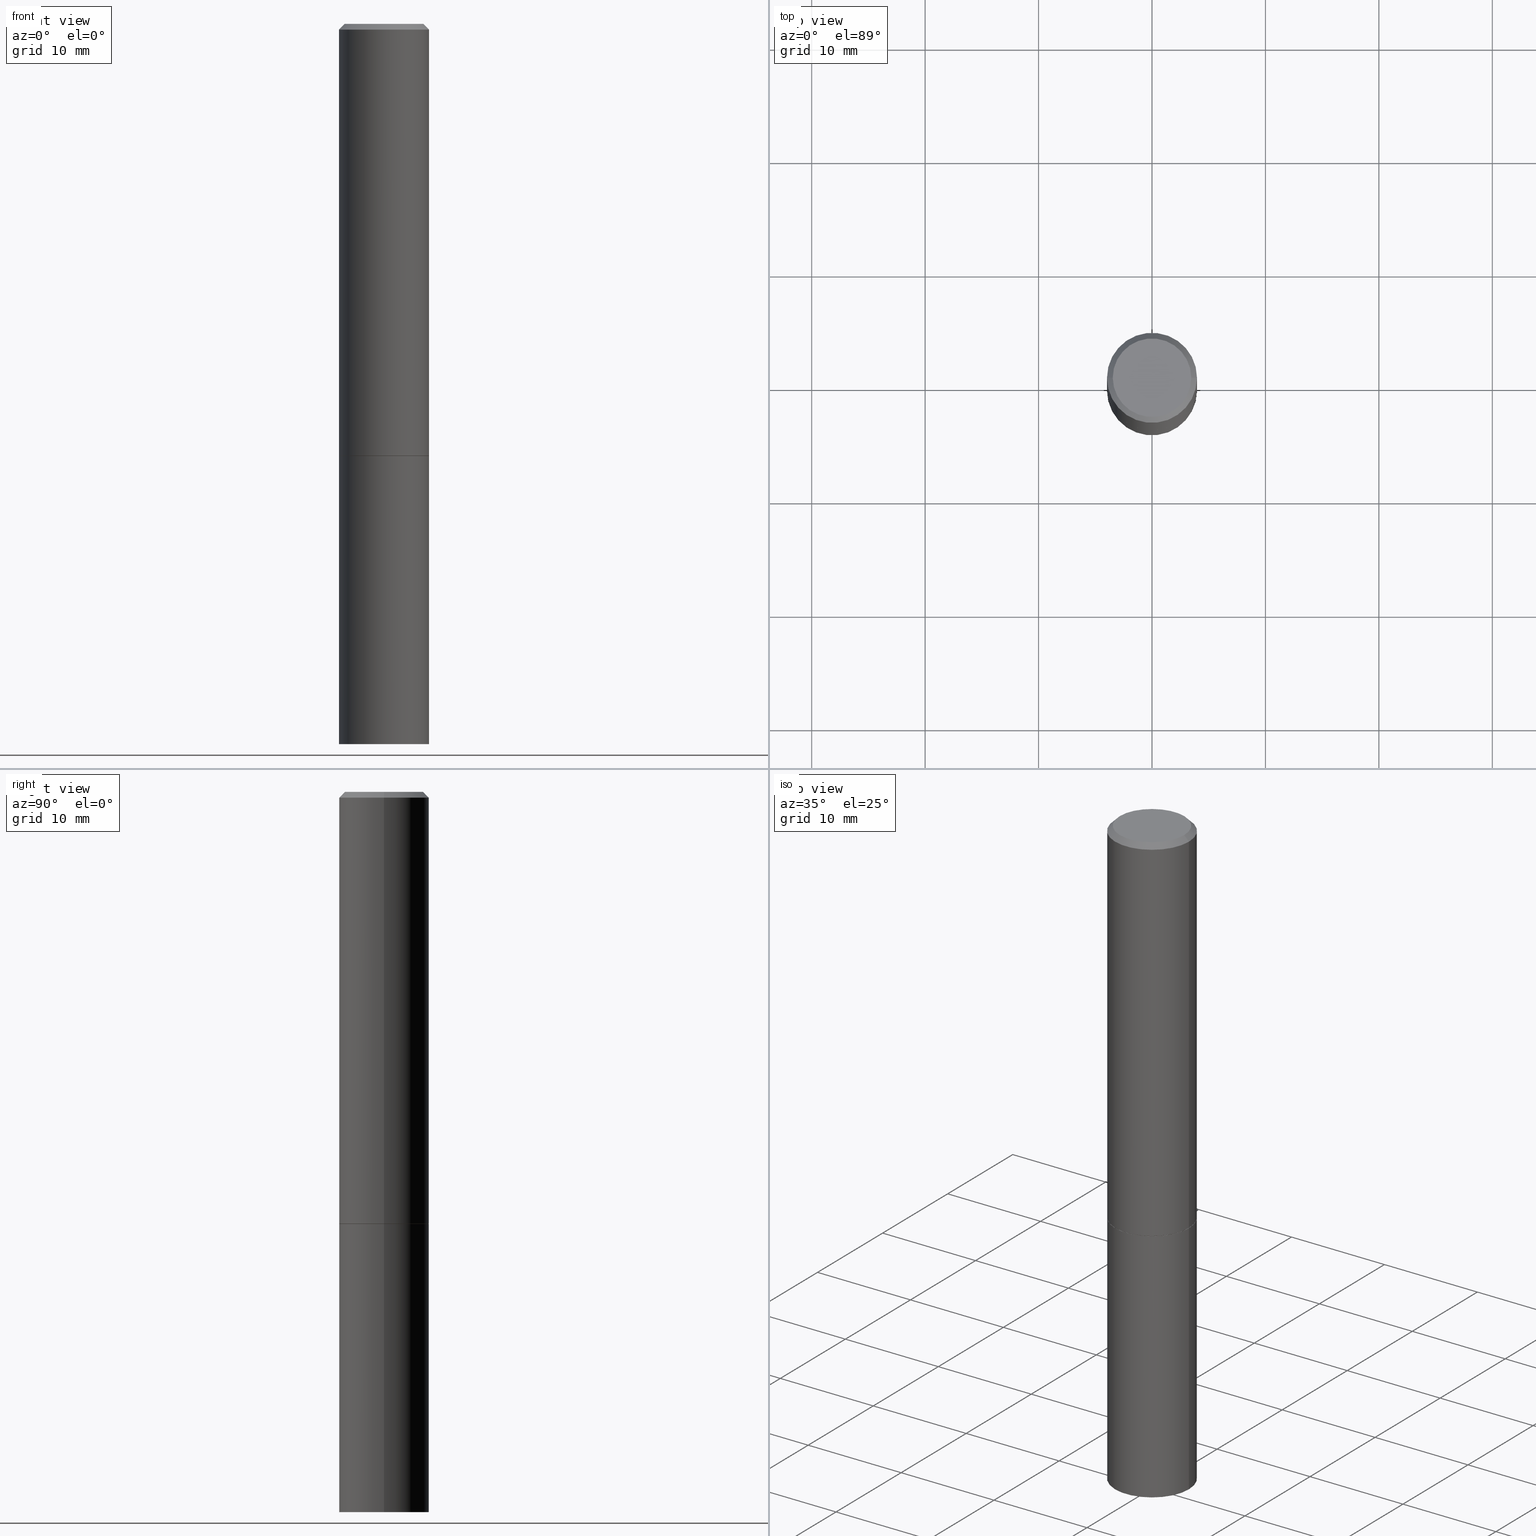
[diagram: canonical four-view strip — front | top / right | iso, engineering-drawing reading convention]
A machine part, canonical four-view strip (front | top / right | iso — engineering-drawing reading convention). The complete STEP part file that produces these views, byte-faithful:
ISO-10303-21;
HEADER;
FILE_DESCRIPTION (( 'STEP AP203' ),
    '1' );
FILE_NAME ('72958.STEP',
    '2024-02-29T05:02:52',
    ( '' ),
    ( '' ),
    'SwSTEP 2.0',
    'SolidWorks 2023',
    '' );
FILE_SCHEMA (( 'CONFIG_CONTROL_DESIGN' ));
ENDSEC;

DATA;
#1 = FACE_OUTER_BOUND ( 'NONE', #50, .T. ) ;
#2 = DIRECTION ( 'NONE',  ( 0.000000000000000000, 0.000000000000000000, 1.000000000000000000 ) ) ;
#3 = CARTESIAN_POINT ( 'NONE',  ( 3.668203209277704895E-29, -5.237222008264718177E-15, -1.500000000000000222 ) ) ;
#4 = DIRECTION ( 'NONE',  ( 1.000000000000000000, -6.982962677686266711E-15, 0.000000000000000000 ) ) ;
#5 = EDGE_CURVE ( 'NONE', #170, #177, #249, .T. ) ;
#6 = DIRECTION ( 'NONE',  ( -2.445468806185136597E-29, 3.491481338843145583E-15, 1.000000000000000000 ) ) ;
#7 = CARTESIAN_POINT ( 'NONE',  ( 0.1562499999999999445, -1.091087918388478779E-15, 7.619026212181146173E-30 ) ) ;
#8 = ORIENTED_EDGE ( 'NONE', *, *, #5, .T. ) ;
#9 = DIRECTION ( 'NONE',  ( -2.445468806185136597E-29, 3.491481338843145583E-15, 1.000000000000000000 ) ) ;
#10 = DIRECTION ( 'NONE',  ( -2.445468806185136877E-29, 3.491481338843145188E-15, 1.000000000000000000 ) ) ;
#11 = ORGANIZATION ( 'UNSPECIFIED', 'UNSPECIFIED', '' ) ;
#12 = EDGE_CURVE ( 'NONE', #90, #177, #349, .T. ) ;
#13 = ORIENTED_EDGE ( 'NONE', *, *, #309, .F. ) ;
#14 = APPROVAL_PERSON_ORGANIZATION ( #84, #266, #257 ) ;
#15 = CC_DESIGN_APPROVAL ( #266, ( #292 ) ) ;
#16 = EDGE_LOOP ( 'NONE', ( #193, #340 ) ) ;
#17 = CALENDAR_DATE ( 2024, 29, 2 ) ;
#18 = ORIENTED_EDGE ( 'NONE', *, *, #263, .T. ) ;
#19 = ADVANCED_FACE ( 'NONE', ( #1 ), #86, .T. ) ;
#20 = ORIENTED_EDGE ( 'NONE', *, *, #300, .F. ) ;
#21 = APPROVAL_ROLE ( '' ) ;
#22 = PERSON ( 'UNSPECIFIED', 'UNSPECIFIED', 'UNSPECIFIED', ('UNSPECIFIED'), ('UNSPECIFIED'), ('UNSPECIFIED') ) ;
#23 = AXIS2_PLACEMENT_3D ( 'NONE', #134, #189, #55 ) ;
#24 = CARTESIAN_POINT ( 'NONE',  ( 3.665757740471519853E-29, -5.233730526925875958E-15, -1.499000000000000110 ) ) ;
#25 = PERSON_AND_ORGANIZATION_ROLE ( 'creator' ) ;
#26 = DIRECTION ( 'NONE',  ( 1.000000000000000000, -6.982962677686266711E-15, 4.876388394912423252E-29 ) ) ;
#27 = DIRECTION ( 'NONE',  ( -0.7071067811866199593, 7.493145998870616062E-15, 0.7071067811864750752 ) ) ;
#28 = DIRECTION ( 'NONE',  ( -1.000000000000000000, 6.982962677686265922E-15, -4.876176775795935793E-29 ) ) ;
#29 = CC_DESIGN_PERSON_AND_ORGANIZATION_ASSIGNMENT ( #363, #273, ( #74 ) ) ;
#30 = ORIENTED_EDGE ( 'NONE', *, *, #176, .T. ) ;
#31 = DIRECTION ( 'NONE',  ( -2.445468806185136877E-29, 3.491481338843145188E-15, 1.000000000000000000 ) ) ;
#32 = EDGE_LOOP ( 'NONE', ( #156, #211 ) ) ;
#33 = AXIS2_PLACEMENT_3D ( 'NONE', #312, #9, #38 ) ;
#34 = PERSON_AND_ORGANIZATION_ROLE ( 'creator' ) ;
#35 = FACE_OUTER_BOUND ( 'NONE', #182, .T. ) ;
#36 = FACE_OUTER_BOUND ( 'NONE', #356, .T. ) ;
#37 = ORIENTED_EDGE ( 'NONE', *, *, #129, .T. ) ;
#38 = DIRECTION ( 'NONE',  ( 1.000000000000000000, -6.982962677686268288E-15, 0.000000000000000000 ) ) ;
#39 = APPROVAL_PERSON_ORGANIZATION ( #131, #41, #21 ) ;
#40 = DIRECTION ( 'NONE',  ( -2.445468806185136597E-29, 3.491481338843145583E-15, 1.000000000000000000 ) ) ;
#41 = APPROVAL ( #269, 'UNSPECIFIED' ) ;
#42 = MANIFOLD_SOLID_BREP ( 'Body-Move/Copy2[1]', #322 ) ;
#43 = CARTESIAN_POINT ( 'NONE',  ( 6.113672015462842613E-29, -8.728703347107864943E-15, -2.500000000000000000 ) ) ;
#44 = APPROVAL_DATE_TIME ( #352, #71 ) ;
#45 = CIRCLE ( 'NONE', #262, 0.1562499999999998612 ) ;
#46 = ADVANCED_FACE ( 'NONE', ( #96 ), #245, .T. ) ;
#47 = ORIENTED_EDGE ( 'NONE', *, *, #66, .T. ) ;
#48 = VECTOR ( 'NONE', #317, 39.37007874015748143 ) ;
#49 = ORIENTED_EDGE ( 'NONE', *, *, #339, .T. ) ;
#50 = EDGE_LOOP ( 'NONE', ( #30, #113, #268, #216 ) ) ;
#51 = DATE_AND_TIME ( #153, #213 ) ;
#52 = ORIENTED_EDGE ( 'NONE', *, *, #92, .F. ) ;
#53 = CLOSED_SHELL ( 'NONE', ( #305, #290, #143, #343, #355, #46, #191, #56 ) ) ;
#54 = CIRCLE ( 'NONE', #95, 0.1552499999999999991 ) ;
#55 = DIRECTION ( 'NONE',  ( 1.000000000000000000, -6.982962677686266711E-15, 4.876176775795935232E-29 ) ) ;
#56 = ADVANCED_FACE ( 'NONE', ( #234 ), #321, .F. ) ;
#57 =( LENGTH_UNIT ( ) NAMED_UNIT ( * ) SI_UNIT ( $, .METRE. ) );
#58 = CARTESIAN_POINT ( 'NONE',  ( 1.091087918388515658E-15, 0.1562499999999947820, -1.500000000000000666 ) ) ;
#59 = LINE ( 'NONE', #136, #333 ) ;
#60 =( NAMED_UNIT ( * ) PLANE_ANGLE_UNIT ( ) SI_UNIT ( $, .RADIAN. ) );
#61 = CARTESIAN_POINT ( 'NONE',  ( 3.668203209277704335E-29, -5.237222008264717388E-15, -1.499999999999999778 ) ) ;
#62 = DIRECTION ( 'NONE',  ( -2.445468806185136877E-29, 3.491481338843145188E-15, 1.000000000000000000 ) ) ;
#63 = DIRECTION ( 'NONE',  ( 1.000000000000000000, 0.000000000000000000, 0.000000000000000000 ) ) ;
#64 = FACE_OUTER_BOUND ( 'NONE', #223, .T. ) ;
#65 = AXIS2_PLACEMENT_3D ( 'NONE', #219, #327, #77 ) ;
#66 = EDGE_CURVE ( 'NONE', #212, #152, #244, .T. ) ;
#67 = DIRECTION ( 'NONE',  ( -2.445468806185136597E-29, 3.491481338843145583E-15, 1.000000000000000000 ) ) ;
#68 = CARTESIAN_POINT ( 'NONE',  ( 6.113672015462842613E-29, -8.728703347107864943E-15, -2.500000000000000000 ) ) ;
#69 = DIRECTION ( 'NONE',  ( -2.445468806185136597E-29, 3.491481338843145583E-15, 1.000000000000000000 ) ) ;
#70 = UNCERTAINTY_MEASURE_WITH_UNIT (LENGTH_MEASURE( 1.000000000000000082E-05 ), #311, 'distance_accuracy_value', 'NONE');
#71 = APPROVAL ( #276, 'UNSPECIFIED' ) ;
#72 = CIRCLE ( 'NONE', #354, 0.1562500000000000000 ) ;
#73 = CARTESIAN_POINT ( 'NONE',  ( 0.000000000000000000, 0.000000000000000000, 0.000000000000000000 ) ) ;
#74 = PRODUCT ( '72958', '72958', '', ( #261 ) ) ;
#75 = CIRCLE ( 'NONE', #279, 0.1562500000000000000 ) ;
#76 = AXIS2_PLACEMENT_3D ( 'NONE', #294, #120, #165 ) ;
#77 = DIRECTION ( 'NONE',  ( 1.000000000000000000, -6.982962677686266711E-15, 0.000000000000000000 ) ) ;
#78 = CALENDAR_DATE ( 2024, 29, 2 ) ;
#79 = ORIENTED_EDGE ( 'NONE', *, *, #159, .T. ) ;
#80 = CC_DESIGN_APPROVAL ( #41, ( #187 ) ) ;
#81 = DIRECTION ( 'NONE',  ( -2.445468806185136597E-29, 3.491481338843145583E-15, 1.000000000000000000 ) ) ;
#82 = CARTESIAN_POINT ( 'NONE',  ( -0.1562499999999998612, 1.021258291611615284E-15, -0.02000000000000003511 ) ) ;
#83 = CARTESIAN_POINT ( 'NONE',  ( -0.1562499999999998612, 1.021258291611615284E-15, -0.02000000000000003511 ) ) ;
#84 = PERSON_AND_ORGANIZATION ( #22, #11 ) ;
#85 = EDGE_CURVE ( 'NONE', #304, #90, #59, .T. ) ;
#86 = CYLINDRICAL_SURFACE ( 'NONE', #291, 0.1562500000000000000 ) ;
#87 = CARTESIAN_POINT ( 'NONE',  ( 3.668203209277704895E-29, -5.237222008264718177E-15, -1.500000000000000222 ) ) ;
#88 = CONICAL_SURFACE ( 'NONE', #362, 0.1562499999999998612, 0.7853981633974471688 ) ;
#89 = CARTESIAN_POINT ( 'NONE',  ( 0.1562500000000000000, -1.091087918388479174E-15, 7.619026212181150377E-30 ) ) ;
#90 = VERTEX_POINT ( 'NONE', #130 ) ;
#91 = CARTESIAN_POINT ( 'NONE',  ( 0.1362499999999998712, -1.038262645562517138E-15, 4.268512490107368508E-18 ) ) ;
#92 = EDGE_CURVE ( 'NONE', #152, #364, #220, .T. ) ;
#93 = CARTESIAN_POINT ( 'NONE',  ( 4.890937612370281041E-31, -6.982962677686302702E-17, -0.02000000000000003511 ) ) ;
#94 = AXIS2_PLACEMENT_3D ( 'NONE', #99, #67, #207 ) ;
#95 = AXIS2_PLACEMENT_3D ( 'NONE', #61, #318, #144 ) ;
#96 = FACE_OUTER_BOUND ( 'NONE', #240, .T. ) ;
#97 = PERSON_AND_ORGANIZATION ( #22, #11 ) ;
#98 = APPROVAL_PERSON_ORGANIZATION ( #331, #71, #128 ) ;
#99 = CARTESIAN_POINT ( 'NONE',  ( 3.668203209277704335E-29, -5.237222008264717388E-15, -1.499999999999999778 ) ) ;
#100 = ORIENTED_EDGE ( 'NONE', *, *, #101, .T. ) ;
#101 = EDGE_CURVE ( 'NONE', #177, #90, #75, .T. ) ;
#102 = CIRCLE ( 'NONE', #33, 0.1552499999999999991 ) ;
#103 = COORDINATED_UNIVERSAL_TIME_OFFSET ( 5, 0, .BEHIND. ) ;
#104 = CC_DESIGN_PERSON_AND_ORGANIZATION_ASSIGNMENT ( #274, #25, ( #187 ) ) ;
#105 = CARTESIAN_POINT ( 'NONE',  ( 4.890937612370281041E-31, -6.982962677686302702E-17, -0.02000000000000003511 ) ) ;
#106 = DIRECTION ( 'NONE',  ( 0.7071067811865466846, -7.319954787623252890E-15, -0.7071067811865483499 ) ) ;
#107 = VERTEX_POINT ( 'NONE', #335 ) ;
#108 = AXIS2_PLACEMENT_3D ( 'NONE', #226, #250, #315 ) ;
#109 = DIRECTION ( 'NONE',  ( 1.000000000000000000, -6.982962677686269077E-15, 0.000000000000000000 ) ) ;
#110 = ORIENTED_EDGE ( 'NONE', *, *, #85, .F. ) ;
#111 = CARTESIAN_POINT ( 'NONE',  ( 0.1562500000000000000, -6.328309926653198139E-15, -1.500000000000000222 ) ) ;
#112 = DATE_TIME_ROLE ( 'creation_date' ) ;
#113 = ORIENTED_EDGE ( 'NONE', *, *, #300, .T. ) ;
#114 = DIRECTION ( 'NONE',  ( 1.000000000000000000, -6.982962677686269077E-15, 0.000000000000000000 ) ) ;
#115 = PLANE ( 'NONE',  #108 ) ;
#116 = AXIS2_PLACEMENT_3D ( 'NONE', #68, #40, #114 ) ;
#117 = PERSON_AND_ORGANIZATION ( #22, #11 ) ;
#118 = DIRECTION ( 'NONE',  ( -2.445468806185136597E-29, 3.491481338843145583E-15, 1.000000000000000000 ) ) ;
#119 = DATE_AND_TIME ( #173, #172 ) ;
#120 = DIRECTION ( 'NONE',  ( -2.445468806185136597E-29, 3.491481338843145583E-15, 1.000000000000000000 ) ) ;
#121 = COORDINATED_UNIVERSAL_TIME_OFFSET ( 5, 0, .BEHIND. ) ;
#122 = VECTOR ( 'NONE', #31, 39.37007874015748143 ) ;
#123 = DIRECTION ( 'NONE',  ( 1.000000000000000000, -6.982962677686266711E-15, 4.876176775795936353E-29 ) ) ;
#124 = ORIENTED_EDGE ( 'NONE', *, *, #150, .T. ) ;
#125 = LOCAL_TIME ( 0, 2, 52.00000000000000000, #146 ) ;
#126 = ORIENTED_EDGE ( 'NONE', *, *, #159, .F. ) ;
#127 = ORIENTED_EDGE ( 'NONE', *, *, #129, .F. ) ;
#128 = APPROVAL_ROLE ( '' ) ;
#129 = EDGE_CURVE ( 'NONE', #90, #364, #190, .T. ) ;
#130 = CARTESIAN_POINT ( 'NONE',  ( -0.1562500000000000000, -1.541557052226212102E-15, -1.499000000000000110 ) ) ;
#131 = PERSON_AND_ORGANIZATION ( #22, #11 ) ;
#132 = DIRECTION ( 'NONE',  ( 2.438088387897960049E-29, -3.491481338843145188E-15, -1.000000000000000000 ) ) ;
#133 = AXIS2_PLACEMENT_3D ( 'NONE', #58, #225, #218 ) ;
#134 = CARTESIAN_POINT ( 'NONE',  ( 0.000000000000000000, 0.000000000000000000, 0.000000000000000000 ) ) ;
#135 = CARTESIAN_POINT ( 'NONE',  ( 0.1552499999999999991, -6.321326963975510547E-15, -1.499999999999999778 ) ) ;
#136 = CARTESIAN_POINT ( 'NONE',  ( -0.1552499999999999991, -4.134104410997161856E-15, -1.499999999999999778 ) ) ;
#137 = DIRECTION ( 'NONE',  ( 1.000000000000000000, -6.982962677686269077E-15, 0.000000000000000000 ) ) ;
#138 = DIRECTION ( 'NONE',  ( -2.445468806185136597E-29, 3.491481338843145583E-15, 1.000000000000000000 ) ) ;
#139 =( NAMED_UNIT ( * ) SI_UNIT ( $, .STERADIAN. ) SOLID_ANGLE_UNIT ( ) );
#140 = PERSON_AND_ORGANIZATION_ROLE ( 'design_supplier' ) ;
#141 = EDGE_LOOP ( 'NONE', ( #188, #13 ) ) ;
#142 = CARTESIAN_POINT ( 'NONE',  ( 0.000000000000000000, 0.000000000000000000, 0.000000000000000000 ) ) ;
#143 = ADVANCED_FACE ( 'NONE', ( #35 ), #162, .T. ) ;
#144 = DIRECTION ( 'NONE',  ( 1.000000000000000000, -6.982962677686268288E-15, 0.000000000000000000 ) ) ;
#145 = AXIS2_PLACEMENT_3D ( 'NONE', #194, #241, #26 ) ;
#146 = COORDINATED_UNIVERSAL_TIME_OFFSET ( 5, 0, .BEHIND. ) ;
#147 = DIRECTION ( 'NONE',  ( 2.445468806185136597E-29, -3.491481338843145583E-15, -1.000000000000000000 ) ) ;
#148 = AXIS2_PLACEMENT_3D ( 'NONE', #93, #147, #341 ) ;
#149 = VECTOR ( 'NONE', #62, 39.37007874015748143 ) ;
#150 = EDGE_CURVE ( 'NONE', #184, #237, #326, .T. ) ;
#151 = AXIS2_PLACEMENT_3D ( 'NONE', #142, #227, #167 ) ;
#152 = VERTEX_POINT ( 'NONE', #320 ) ;
#153 = CALENDAR_DATE ( 2024, 29, 2 ) ;
#154 = ORIENTED_EDGE ( 'NONE', *, *, #272, .T. ) ;
#155 =( GEOMETRIC_REPRESENTATION_CONTEXT ( 3 ) GLOBAL_UNCERTAINTY_ASSIGNED_CONTEXT ( ( #70 ) ) GLOBAL_UNIT_ASSIGNED_CONTEXT ( ( #311, #60, #139 ) ) REPRESENTATION_CONTEXT ( 'NONE', 'WORKASPACE' ) );
#156 = ORIENTED_EDGE ( 'NONE', *, *, #298, .T. ) ;
#157 = CYLINDRICAL_SURFACE ( 'NONE', #23, 0.1562499999999999445 ) ;
#158 = CARTESIAN_POINT ( 'NONE',  ( -0.1562499999999999445, 1.110223024625156146E-15, -7.685836078523286956E-30 ) ) ;
#159 = EDGE_CURVE ( 'NONE', #364, #152, #45, .T. ) ;
#160 = ORIENTED_EDGE ( 'NONE', *, *, #92, .T. ) ;
#161 = LENGTH_MEASURE_WITH_UNIT ( LENGTH_MEASURE( 0.02539999999999999897 ), #57 );
#162 = CONICAL_SURFACE ( 'NONE', #148, 0.1562499999999998612, 0.7853981633974471688 ) ;
#163 = CARTESIAN_POINT ( 'NONE',  ( 3.665757740471519853E-29, -5.233730526925875958E-15, -1.499000000000000110 ) ) ;
#164 = AXIS2_PLACEMENT_3D ( 'NONE', #73, #2, #63 ) ;
#165 = DIRECTION ( 'NONE',  ( 1.000000000000000000, -6.982962677686266711E-15, 4.876388394912423252E-29 ) ) ;
#166 = CARTESIAN_POINT ( 'NONE',  ( 0.1562500000000000000, -9.819791265496344905E-15, -2.500000000000000000 ) ) ;
#167 = DIRECTION ( 'NONE',  ( 1.000000000000000000, -6.982962677686266711E-15, 4.876176775795936353E-29 ) ) ;
#168 = CC_DESIGN_PERSON_AND_ORGANIZATION_ASSIGNMENT ( #97, #34, ( #252 ) ) ;
#169 = DATE_AND_TIME ( #260, #125 ) ;
#170 = VERTEX_POINT ( 'NONE', #135 ) ;
#171 = CARTESIAN_POINT ( 'NONE',  ( 0.000000000000000000, 0.000000000000000000, 0.000000000000000000 ) ) ;
#172 = LOCAL_TIME ( 0, 2, 52.00000000000000000, #121 ) ;
#173 = CALENDAR_DATE ( 2024, 29, 2 ) ;
#174 = CARTESIAN_POINT ( 'NONE',  ( 4.890937612370281041E-31, -6.982962677686302702E-17, -0.02000000000000003511 ) ) ;
#175 = CONICAL_SURFACE ( 'NONE', #313, 0.1552499999999999991, 0.7853981633975507526 ) ;
#176 = EDGE_CURVE ( 'NONE', #332, #208, #337, .T. ) ;
#177 = VERTEX_POINT ( 'NONE', #295 ) ;
#178 = VECTOR ( 'NONE', #106, 39.37007874015748143 ) ;
#179 = ORIENTED_EDGE ( 'NONE', *, *, #12, .F. ) ;
#180 = ORIENTED_EDGE ( 'NONE', *, *, #232, .F. ) ;
#181 = CC_DESIGN_PERSON_AND_ORGANIZATION_ASSIGNMENT ( #117, #251, ( #292 ) ) ;
#182 = EDGE_LOOP ( 'NONE', ( #278, #47, #160, #180 ) ) ;
#183 = DATE_AND_TIME ( #78, #236 ) ;
#184 = VERTEX_POINT ( 'NONE', #224 ) ;
#185 = DIRECTION ( 'NONE',  ( 1.000000000000000000, -6.982962677686269077E-15, 0.000000000000000000 ) ) ;
#186 = AXIS2_PLACEMENT_3D ( 'NONE', #163, #282, #137 ) ;
#187 = PRODUCT_DEFINITION_FORMATION_WITH_SPECIFIED_SOURCE ( 'ANY', '', #74, .NOT_KNOWN. ) ;
#188 = ORIENTED_EDGE ( 'NONE', *, *, #176, .F. ) ;
#189 = DIRECTION ( 'NONE',  ( -2.445468806185136597E-29, 3.491481338843145583E-15, 1.000000000000000000 ) ) ;
#190 = LINE ( 'NONE', #158, #122 ) ;
#191 = ADVANCED_FACE ( 'NONE', ( #366 ), #115, .F. ) ;
#192 = DIRECTION ( 'NONE',  ( 2.445468806185136597E-29, -3.491481338843145583E-15, -1.000000000000000000 ) ) ;
#193 = ORIENTED_EDGE ( 'NONE', *, *, #263, .F. ) ;
#194 = CARTESIAN_POINT ( 'NONE',  ( -1.043851414335219820E-46, 1.490343170380447200E-32, 4.268512490100411279E-18 ) ) ;
#195 = CYLINDRICAL_SURFACE ( 'NONE', #151, 0.1562500000000000000 ) ;
#196 = CARTESIAN_POINT ( 'NONE',  ( 0.000000000000000000, 0.000000000000000000, 0.000000000000000000 ) ) ;
#197 = ADVANCED_FACE ( 'NONE', ( #36 ), #195, .T. ) ;
#198 = DIRECTION ( 'NONE',  ( -2.445468806185136597E-29, 3.491481338843145583E-15, 1.000000000000000000 ) ) ;
#199 = APPROVAL_DATE_TIME ( #119, #266 ) ;
#200 = LINE ( 'NONE', #89, #48 ) ;
#201 = DIRECTION ( 'NONE',  ( -2.445468806185136597E-29, 3.491481338843145583E-15, 1.000000000000000000 ) ) ;
#202 = VECTOR ( 'NONE', #287, 39.37007874015748143 ) ;
#203 = DIRECTION ( 'NONE',  ( 1.000000000000000000, -6.982962677686269077E-15, 0.000000000000000000 ) ) ;
#204 = COORDINATED_UNIVERSAL_TIME_OFFSET ( 5, 0, .BEHIND. ) ;
#205 = DIMENSIONAL_EXPONENTS ( 1.000000000000000000, 0.000000000000000000, 0.000000000000000000, 0.000000000000000000, 0.000000000000000000, 0.000000000000000000, 0.000000000000000000 ) ;
#206 = DIRECTION ( 'NONE',  ( 1.000000000000000000, -6.982962677686268288E-15, 0.000000000000000000 ) ) ;
#207 = DIRECTION ( 'NONE',  ( 1.000000000000000000, -6.982962677686268288E-15, 0.000000000000000000 ) ) ;
#208 = VERTEX_POINT ( 'NONE', #254 ) ;
#209 = ORIENTED_EDGE ( 'NONE', *, *, #12, .T. ) ;
#210 = PRODUCT_DEFINITION_SHAPE ( 'NONE', 'NONE',  #252 ) ;
#211 = ORIENTED_EDGE ( 'NONE', *, *, #348, .T. ) ;
#212 = VERTEX_POINT ( 'NONE', #91 ) ;
#213 = LOCAL_TIME ( 0, 2, 52.00000000000000000, #248 ) ;
#214 = PLANE ( 'NONE',  #133 ) ;
#215 = DIRECTION ( 'NONE',  ( -2.445468806185136597E-29, 3.491481338843145583E-15, 1.000000000000000000 ) ) ;
#216 = ORIENTED_EDGE ( 'NONE', *, *, #242, .F. ) ;
#217 = EDGE_CURVE ( 'NONE', #177, #152, #289, .T. ) ;
#218 = DIRECTION ( 'NONE',  ( -1.000000000000000000, 6.982962677686265922E-15, -4.876176775795935793E-29 ) ) ;
#219 = CARTESIAN_POINT ( 'NONE',  ( 4.890937612370281041E-31, -6.982962677686302702E-17, -0.02000000000000003511 ) ) ;
#220 = CIRCLE ( 'NONE', #65, 0.1562499999999998612 ) ;
#221 = CC_DESIGN_SECURITY_CLASSIFICATION ( #292, ( #187 ) ) ;
#222 = ORIENTED_EDGE ( 'NONE', *, *, #217, .F. ) ;
#223 = EDGE_LOOP ( 'NONE', ( #100, #37, #52, #222 ) ) ;
#224 = CARTESIAN_POINT ( 'NONE',  ( -0.1562500000000000000, -5.872739653061135414E-15, -1.500000000000000222 ) ) ;
#225 = DIRECTION ( 'NONE',  ( 2.438088387897960049E-29, -3.491481338843145188E-15, -1.000000000000000000 ) ) ;
#226 = CARTESIAN_POINT ( 'NONE',  ( 3.668203209277704335E-29, -5.237222008264717388E-15, -1.499999999999999778 ) ) ;
#227 = DIRECTION ( 'NONE',  ( -2.445468806185136597E-29, 3.491481338843145583E-15, 1.000000000000000000 ) ) ;
#228 = DIRECTION ( 'NONE',  ( 1.000000000000000000, -6.982962677686266711E-15, 4.876176775795935232E-29 ) ) ;
#229 = CARTESIAN_POINT ( 'NONE',  ( -0.1552499999999999991, -4.128805956648940242E-15, -1.499999999999999778 ) ) ;
#230 = APPROVAL_STATUS ( 'not_yet_approved' ) ;
#231 = AXIS2_PLACEMENT_3D ( 'NONE', #308, #132, #243 ) ;
#232 = EDGE_CURVE ( 'NONE', #107, #364, #344, .T. ) ;
#233 = APPLICATION_CONTEXT ( 'configuration controlled 3d designs of mechanical parts and assemblies' ) ;
#234 = FACE_OUTER_BOUND ( 'NONE', #32, .T. ) ;
#235 = ADVANCED_BREP_SHAPE_REPRESENTATION ( '72958', ( #42, #281, #164 ), #155 ) ;
#236 = LOCAL_TIME ( 0, 2, 52.00000000000000000, #103 ) ;
#237 = VERTEX_POINT ( 'NONE', #111 ) ;
#238 = CARTESIAN_POINT ( 'NONE',  ( 3.668203209277704335E-29, -5.237222008264717388E-15, -1.499999999999999778 ) ) ;
#239 = CC_DESIGN_DATE_AND_TIME_ASSIGNMENT ( #169, #288, ( #292 ) ) ;
#240 = EDGE_LOOP ( 'NONE', ( #110, #154, #8, #179 ) ) ;
#241 = DIRECTION ( 'NONE',  ( -2.445468806185136597E-29, 3.491481338843145583E-15, 1.000000000000000000 ) ) ;
#242 = EDGE_CURVE ( 'NONE', #332, #237, #200, .T. ) ;
#243 = DIRECTION ( 'NONE',  ( -1.000000000000000000, 6.982962677686265922E-15, -4.876176775795935793E-29 ) ) ;
#244 = LINE ( 'NONE', #359, #178 ) ;
#245 = CONICAL_SURFACE ( 'NONE', #94, 0.1552499999999999991, 0.7853981633975507526 ) ;
#246 = AXIS2_PLACEMENT_3D ( 'NONE', #3, #81, #109 ) ;
#247 = PLANE ( 'NONE',  #231 ) ;
#248 = COORDINATED_UNIVERSAL_TIME_OFFSET ( 5, 0, .BEHIND. ) ;
#249 = LINE ( 'NONE', #310, #347 ) ;
#250 = DIRECTION ( 'NONE',  ( -2.438088387897960049E-29, 3.491481338843145188E-15, 1.000000000000000000 ) ) ;
#251 = PERSON_AND_ORGANIZATION_ROLE ( 'classification_officer' ) ;
#252 = PRODUCT_DEFINITION ( 'UNKNOWN', '', #187, #346 ) ;
#253 = DIRECTION ( 'NONE',  ( 0.7071067811866199593, -2.468850131083015945E-15, 0.7071067811864750752 ) ) ;
#254 = CARTESIAN_POINT ( 'NONE',  ( -0.1562500000000000000, -5.872739653061135414E-15, -2.500000000000000000 ) ) ;
#255 = CIRCLE ( 'NONE', #246, 0.1562500000000000000 ) ;
#256 = CYLINDRICAL_SURFACE ( 'NONE', #323, 0.1562499999999999445 ) ;
#257 = APPROVAL_ROLE ( '' ) ;
#258 = PRODUCT_RELATED_PRODUCT_CATEGORY ( 'detail', '', ( #74 ) ) ;
#259 = LINE ( 'NONE', #284, #280 ) ;
#260 = CALENDAR_DATE ( 2024, 29, 2 ) ;
#261 = MECHANICAL_CONTEXT ( 'NONE', #233, 'mechanical' ) ;
#262 = AXIS2_PLACEMENT_3D ( 'NONE', #174, #201, #4 ) ;
#263 = EDGE_CURVE ( 'NONE', #170, #304, #102, .T. ) ;
#264 = EDGE_LOOP ( 'NONE', ( #307, #325, #302, #79 ) ) ;
#265 = CARTESIAN_POINT ( 'NONE',  ( 9.514286648347529716E-16, 0.1362499999999998712, -4.735800761723279488E-16 ) ) ;
#266 = APPROVAL ( #230, 'UNSPECIFIED' ) ;
#267 = EDGE_LOOP ( 'NONE', ( #49, #124 ) ) ;
#268 = ORIENTED_EDGE ( 'NONE', *, *, #339, .F. ) ;
#269 = APPROVAL_STATUS ( 'not_yet_approved' ) ;
#270 = APPLICATION_CONTEXT ( 'configuration controlled 3d designs of mechanical parts and assemblies' ) ;
#271 = APPROVAL_DATE_TIME ( #183, #41 ) ;
#272 = EDGE_CURVE ( 'NONE', #304, #170, #54, .T. ) ;
#273 = PERSON_AND_ORGANIZATION_ROLE ( 'design_owner' ) ;
#274 = PERSON_AND_ORGANIZATION ( #22, #11 ) ;
#275 = DIRECTION ( 'NONE',  ( 2.438088387897960049E-29, -3.491481338843145188E-15, -1.000000000000000000 ) ) ;
#276 = APPROVAL_STATUS ( 'not_yet_approved' ) ;
#277 = EDGE_LOOP ( 'NONE', ( #18, #285, #314, #303 ) ) ;
#278 = ORIENTED_EDGE ( 'NONE', *, *, #348, .F. ) ;
#279 = AXIS2_PLACEMENT_3D ( 'NONE', #24, #215, #185 ) ;
#280 = VECTOR ( 'NONE', #10, 39.37007874015748143 ) ;
#281 = MANIFOLD_SOLID_BREP ( 'Body-Move/Copy2[2]', #53 ) ;
#282 = DIRECTION ( 'NONE',  ( -2.445468806185136597E-29, 3.491481338843145583E-15, 1.000000000000000000 ) ) ;
#283 = CC_DESIGN_PERSON_AND_ORGANIZATION_ASSIGNMENT ( #357, #140, ( #187 ) ) ;
#284 = CARTESIAN_POINT ( 'NONE',  ( -0.1562500000000000000, 1.110223024625156540E-15, -7.685836078523291160E-30 ) ) ;
#285 = ORIENTED_EDGE ( 'NONE', *, *, #85, .T. ) ;
#286 = DIRECTION ( 'NONE',  ( -1.000000000000000000, 6.982962677686267499E-15, 0.000000000000000000 ) ) ;
#287 = DIRECTION ( 'NONE',  ( -0.7071067811865466846, 2.468850131082247989E-15, -0.7071067811865483499 ) ) ;
#288 = DATE_TIME_ROLE ( 'classification_date' ) ;
#289 = LINE ( 'NONE', #7, #149 ) ;
#290 = ADVANCED_FACE ( 'NONE', ( #64 ), #256, .T. ) ;
#291 = AXIS2_PLACEMENT_3D ( 'NONE', #196, #6, #123 ) ;
#292 = SECURITY_CLASSIFICATION ( '', '', #345 ) ;
#293 = APPLICATION_PROTOCOL_DEFINITION ( 'international standard', 'config_control_design', 1994, #233 ) ;
#294 = CARTESIAN_POINT ( 'NONE',  ( -1.043851414335219820E-46, 1.490343170380447200E-32, 4.268512490100411279E-18 ) ) ;
#295 = CARTESIAN_POINT ( 'NONE',  ( 0.1562500000000000000, -6.324818445314355132E-15, -1.499000000000000110 ) ) ;
#296 = DIRECTION ( 'NONE',  ( 1.000000000000000000, -6.982962677686269077E-15, 0.000000000000000000 ) ) ;
#297 = FACE_OUTER_BOUND ( 'NONE', #277, .T. ) ;
#298 = EDGE_CURVE ( 'NONE', #107, #212, #301, .T. ) ;
#299 = ORIENTED_EDGE ( 'NONE', *, *, #309, .T. ) ;
#300 = EDGE_CURVE ( 'NONE', #208, #184, #259, .T. ) ;
#301 = CIRCLE ( 'NONE', #76, 0.1362499999999998712 ) ;
#302 = ORIENTED_EDGE ( 'NONE', *, *, #232, .T. ) ;
#303 = ORIENTED_EDGE ( 'NONE', *, *, #5, .F. ) ;
#304 = VERTEX_POINT ( 'NONE', #229 ) ;
#305 = ADVANCED_FACE ( 'NONE', ( #297 ), #175, .T. ) ;
#306 = LOCAL_TIME ( 0, 2, 52.00000000000000000, #204 ) ;
#307 = ORIENTED_EDGE ( 'NONE', *, *, #66, .F. ) ;
#308 = CARTESIAN_POINT ( 'NONE',  ( 1.091087918388540310E-15, 0.1562499999999912570, -2.500000000000000444 ) ) ;
#309 = EDGE_CURVE ( 'NONE', #208, #332, #72, .T. ) ;
#310 = CARTESIAN_POINT ( 'NONE',  ( 0.1552499999999999991, -6.321326963975510547E-15, -1.499999999999999778 ) ) ;
#311 =( CONVERSION_BASED_UNIT ( 'INCH', #161 ) LENGTH_UNIT ( ) NAMED_UNIT ( #205 ) );
#312 = CARTESIAN_POINT ( 'NONE',  ( 3.668203209277704335E-29, -5.237222008264717388E-15, -1.499999999999999778 ) ) ;
#313 = AXIS2_PLACEMENT_3D ( 'NONE', #238, #138, #206 ) ;
#314 = ORIENTED_EDGE ( 'NONE', *, *, #101, .F. ) ;
#315 = DIRECTION ( 'NONE',  ( 1.000000000000000000, -6.982962677686265922E-15, 4.876176775795935793E-29 ) ) ;
#316 = SHAPE_DEFINITION_REPRESENTATION ( #210, #235 ) ;
#317 = DIRECTION ( 'NONE',  ( -2.445468806185136877E-29, 3.491481338843145188E-15, 1.000000000000000000 ) ) ;
#318 = DIRECTION ( 'NONE',  ( -2.445468806185136597E-29, 3.491481338843145583E-15, 1.000000000000000000 ) ) ;
#319 = CIRCLE ( 'NONE', #145, 0.1362499999999998712 ) ;
#320 = CARTESIAN_POINT ( 'NONE',  ( 0.1562499999999998612, -1.141782438928663922E-15, -0.02000000000000003511 ) ) ;
#321 = PLANE ( 'NONE',  #336 ) ;
#322 = CLOSED_SHELL ( 'NONE', ( #19, #361, #350, #197 ) ) ;
#323 = AXIS2_PLACEMENT_3D ( 'NONE', #171, #118, #228 ) ;
#324 = CC_DESIGN_DATE_AND_TIME_ASSIGNMENT ( #51, #112, ( #252 ) ) ;
#325 = ORIENTED_EDGE ( 'NONE', *, *, #298, .F. ) ;
#326 = CIRCLE ( 'NONE', #353, 0.1562500000000000000 ) ;
#327 = DIRECTION ( 'NONE',  ( -2.445468806185136597E-29, 3.491481338843145583E-15, 1.000000000000000000 ) ) ;
#328 = ORIENTED_EDGE ( 'NONE', *, *, #150, .F. ) ;
#329 = EDGE_LOOP ( 'NONE', ( #127, #209, #342, #126 ) ) ;
#330 = FACE_OUTER_BOUND ( 'NONE', #329, .T. ) ;
#331 = PERSON_AND_ORGANIZATION ( #22, #11 ) ;
#332 = VERTEX_POINT ( 'NONE', #166 ) ;
#333 = VECTOR ( 'NONE', #27, 39.37007874015748143 ) ;
#334 = FACE_OUTER_BOUND ( 'NONE', #264, .T. ) ;
#335 = CARTESIAN_POINT ( 'NONE',  ( -0.1362499999999998712, 9.863434782231840290E-16, 4.268512490093635087E-18 ) ) ;
#336 = AXIS2_PLACEMENT_3D ( 'NONE', #265, #275, #28 ) ;
#337 = CIRCLE ( 'NONE', #116, 0.1562500000000000000 ) ;
#338 = FACE_OUTER_BOUND ( 'NONE', #141, .T. ) ;
#339 = EDGE_CURVE ( 'NONE', #237, #184, #255, .T. ) ;
#340 = ORIENTED_EDGE ( 'NONE', *, *, #272, .F. ) ;
#341 = DIRECTION ( 'NONE',  ( -1.000000000000000000, 6.982962677686267499E-15, 0.000000000000000000 ) ) ;
#342 = ORIENTED_EDGE ( 'NONE', *, *, #217, .T. ) ;
#343 = ADVANCED_FACE ( 'NONE', ( #334 ), #88, .T. ) ;
#344 = LINE ( 'NONE', #83, #202 ) ;
#345 = SECURITY_CLASSIFICATION_LEVEL ( 'unclassified' ) ;
#346 = DESIGN_CONTEXT ( 'detailed design', #270, 'design' ) ;
#347 = VECTOR ( 'NONE', #253, 39.37007874015748143 ) ;
#348 = EDGE_CURVE ( 'NONE', #212, #107, #319, .T. ) ;
#349 = CIRCLE ( 'NONE', #186, 0.1562500000000000000 ) ;
#350 = ADVANCED_FACE ( 'NONE', ( #365 ), #214, .F. ) ;
#351 = CC_DESIGN_APPROVAL ( #71, ( #252 ) ) ;
#352 = DATE_AND_TIME ( #17, #306 ) ;
#353 = AXIS2_PLACEMENT_3D ( 'NONE', #87, #198, #203 ) ;
#354 = AXIS2_PLACEMENT_3D ( 'NONE', #43, #69, #296 ) ;
#355 = ADVANCED_FACE ( 'NONE', ( #330 ), #157, .T. ) ;
#356 = EDGE_LOOP ( 'NONE', ( #20, #299, #360, #328 ) ) ;
#357 = PERSON_AND_ORGANIZATION ( #22, #11 ) ;
#358 = APPLICATION_PROTOCOL_DEFINITION ( 'international standard', 'config_control_design', 1994, #270 ) ;
#359 = CARTESIAN_POINT ( 'NONE',  ( 0.1562499999999998612, -1.141782438928663922E-15, -0.02000000000000003511 ) ) ;
#360 = ORIENTED_EDGE ( 'NONE', *, *, #242, .T. ) ;
#361 = ADVANCED_FACE ( 'NONE', ( #338 ), #247, .T. ) ;
#362 = AXIS2_PLACEMENT_3D ( 'NONE', #105, #192, #286 ) ;
#363 = PERSON_AND_ORGANIZATION ( #22, #11 ) ;
#364 = VERTEX_POINT ( 'NONE', #82 ) ;
#365 = FACE_OUTER_BOUND ( 'NONE', #267, .T. ) ;
#366 = FACE_OUTER_BOUND ( 'NONE', #16, .T. ) ;
ENDSEC;
END-ISO-10303-21;
